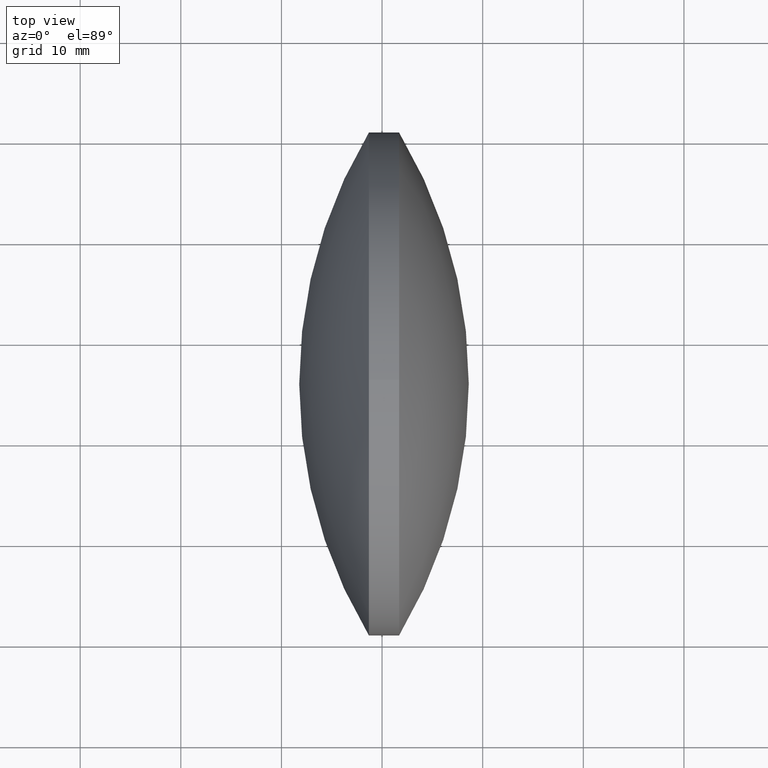
[diagram: clean part render]
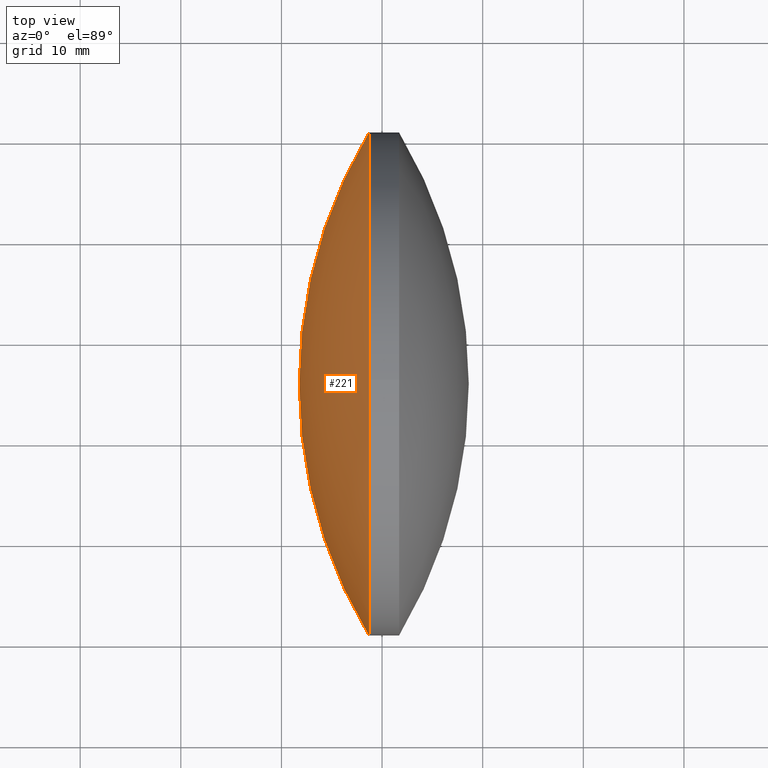
[diagram: same view with one face highlighted and labeled with its STEP entity id]
A machine part, top view. The second image highlights one B-rep face of the part: STEP entity #221.
In plain terms, the highlighted spherical surface has radius 48.5889 mm.
Its self-contained STEP definition (entity closure, byte-faithful):
#7 = DIRECTION ( 'NONE',  ( 0.0000000000000000000, 1.000000000000000000, 1.224646799147353500E-016 ) ) ;
#9 = CARTESIAN_POINT ( 'NONE',  ( 210.3571486226290100, 95.70100988816005800, 0.0000000000000000000 ) ) ;
#12 = EDGE_LOOP ( 'NONE', ( #230, #175, #67, #258 ) ) ;
#26 = AXIS2_PLACEMENT_3D ( 'NONE', #302, #273, #7 ) ;
#39 = CARTESIAN_POINT ( 'NONE',  ( 168.6932948320147400, 95.70100988816007300, 0.0000000000000000000 ) ) ;
#49 = AXIS2_PLACEMENT_3D ( 'NONE', #39, #228, #114 ) ;
#53 = CARTESIAN_POINT ( 'NONE',  ( 168.6932948320147400, 95.70100988816007300, 0.0000000000000000000 ) ) ;
#54 = DIRECTION ( 'NONE',  ( -0.0000000000000000000, 0.0000000000000000000, -1.000000000000000000 ) ) ;
#56 = EDGE_CURVE ( 'NONE', #270, #209, #106, .T. ) ;
#58 = DIRECTION ( 'NONE',  ( 0.0000000000000000000, 0.0000000000000000000, 1.000000000000000000 ) ) ;
#63 = CIRCLE ( 'NONE', #223, 48.58885379061430900 ) ;
#64 = DIRECTION ( 'NONE',  ( -0.0000000000000000000, 0.0000000000000000000, 1.000000000000000000 ) ) ;
#65 = AXIS2_PLACEMENT_3D ( 'NONE', #171, #54, #274 ) ;
#67 = ORIENTED_EDGE ( 'NONE', *, *, #56, .T. ) ;
#83 = CARTESIAN_POINT ( 'NONE',  ( 161.7682948320146700, 95.70100988816005800, 0.0000000000000000000 ) ) ;
#106 = CIRCLE ( 'NONE', #340, 25.00000000000025900 ) ;
#109 = VERTEX_POINT ( 'NONE', #83 ) ;
#114 = DIRECTION ( 'NONE',  ( 0.0000000000000000000, 0.0000000000000000000, 1.000000000000000000 ) ) ;
#118 = CARTESIAN_POINT ( 'NONE',  ( 168.6932948320147400, 95.70100988816007300, 25.00000000000025900 ) ) ;
#127 = CIRCLE ( 'NONE', #26, 48.58885379061432300 ) ;
#141 = FACE_OUTER_BOUND ( 'NONE', #12, .T. ) ;
#171 = CARTESIAN_POINT ( 'NONE',  ( 210.3571486226290100, 95.70100988816005800, 0.0000000000000000000 ) ) ;
#175 = ORIENTED_EDGE ( 'NONE', *, *, #287, .T. ) ;
#194 = VERTEX_POINT ( 'NONE', #323 ) ;
#209 = VERTEX_POINT ( 'NONE', #218 ) ;
#216 = SPHERICAL_SURFACE ( 'NONE', #65, 48.58885379061433000 ) ;
#218 = CARTESIAN_POINT ( 'NONE',  ( 168.6932948320147400, 120.7010098881603300, 0.0000000000000000000 ) ) ;
#221 = ADVANCED_FACE ( 'NONE', ( #141 ), #216, .T. ) ;
#223 = AXIS2_PLACEMENT_3D ( 'NONE', #9, #64, #272 ) ;
#224 = DIRECTION ( 'NONE',  ( -1.000000000000000000, -0.0000000000000000000, -0.0000000000000000000 ) ) ;
#228 = DIRECTION ( 'NONE',  ( -1.000000000000000000, -0.0000000000000000000, -0.0000000000000000000 ) ) ;
#230 = ORIENTED_EDGE ( 'NONE', *, *, #304, .F. ) ;
#258 = ORIENTED_EDGE ( 'NONE', *, *, #320, .T. ) ;
#263 = CIRCLE ( 'NONE', #49, 25.00000000000025900 ) ;
#270 = VERTEX_POINT ( 'NONE', #118 ) ;
#272 = DIRECTION ( 'NONE',  ( 1.000000000000000000, 0.0000000000000000000, 0.0000000000000000000 ) ) ;
#273 = DIRECTION ( 'NONE',  ( 0.0000000000000000000, 1.224646799147353200E-016, -1.000000000000000000 ) ) ;
#274 = DIRECTION ( 'NONE',  ( 0.0000000000000000000, 1.000000000000000000, 0.0000000000000000000 ) ) ;
#287 = EDGE_CURVE ( 'NONE', #194, #270, #263, .T. ) ;
#302 = CARTESIAN_POINT ( 'NONE',  ( 210.3571486226290100, 95.70100988816005800, 0.0000000000000000000 ) ) ;
#304 = EDGE_CURVE ( 'NONE', #194, #109, #127, .T. ) ;
#320 = EDGE_CURVE ( 'NONE', #209, #109, #63, .T. ) ;
#323 = CARTESIAN_POINT ( 'NONE',  ( 168.6932948320147400, 70.70100988815980300, -3.061616997868414600E-015 ) ) ;
#340 = AXIS2_PLACEMENT_3D ( 'NONE', #53, #224, #58 ) ;